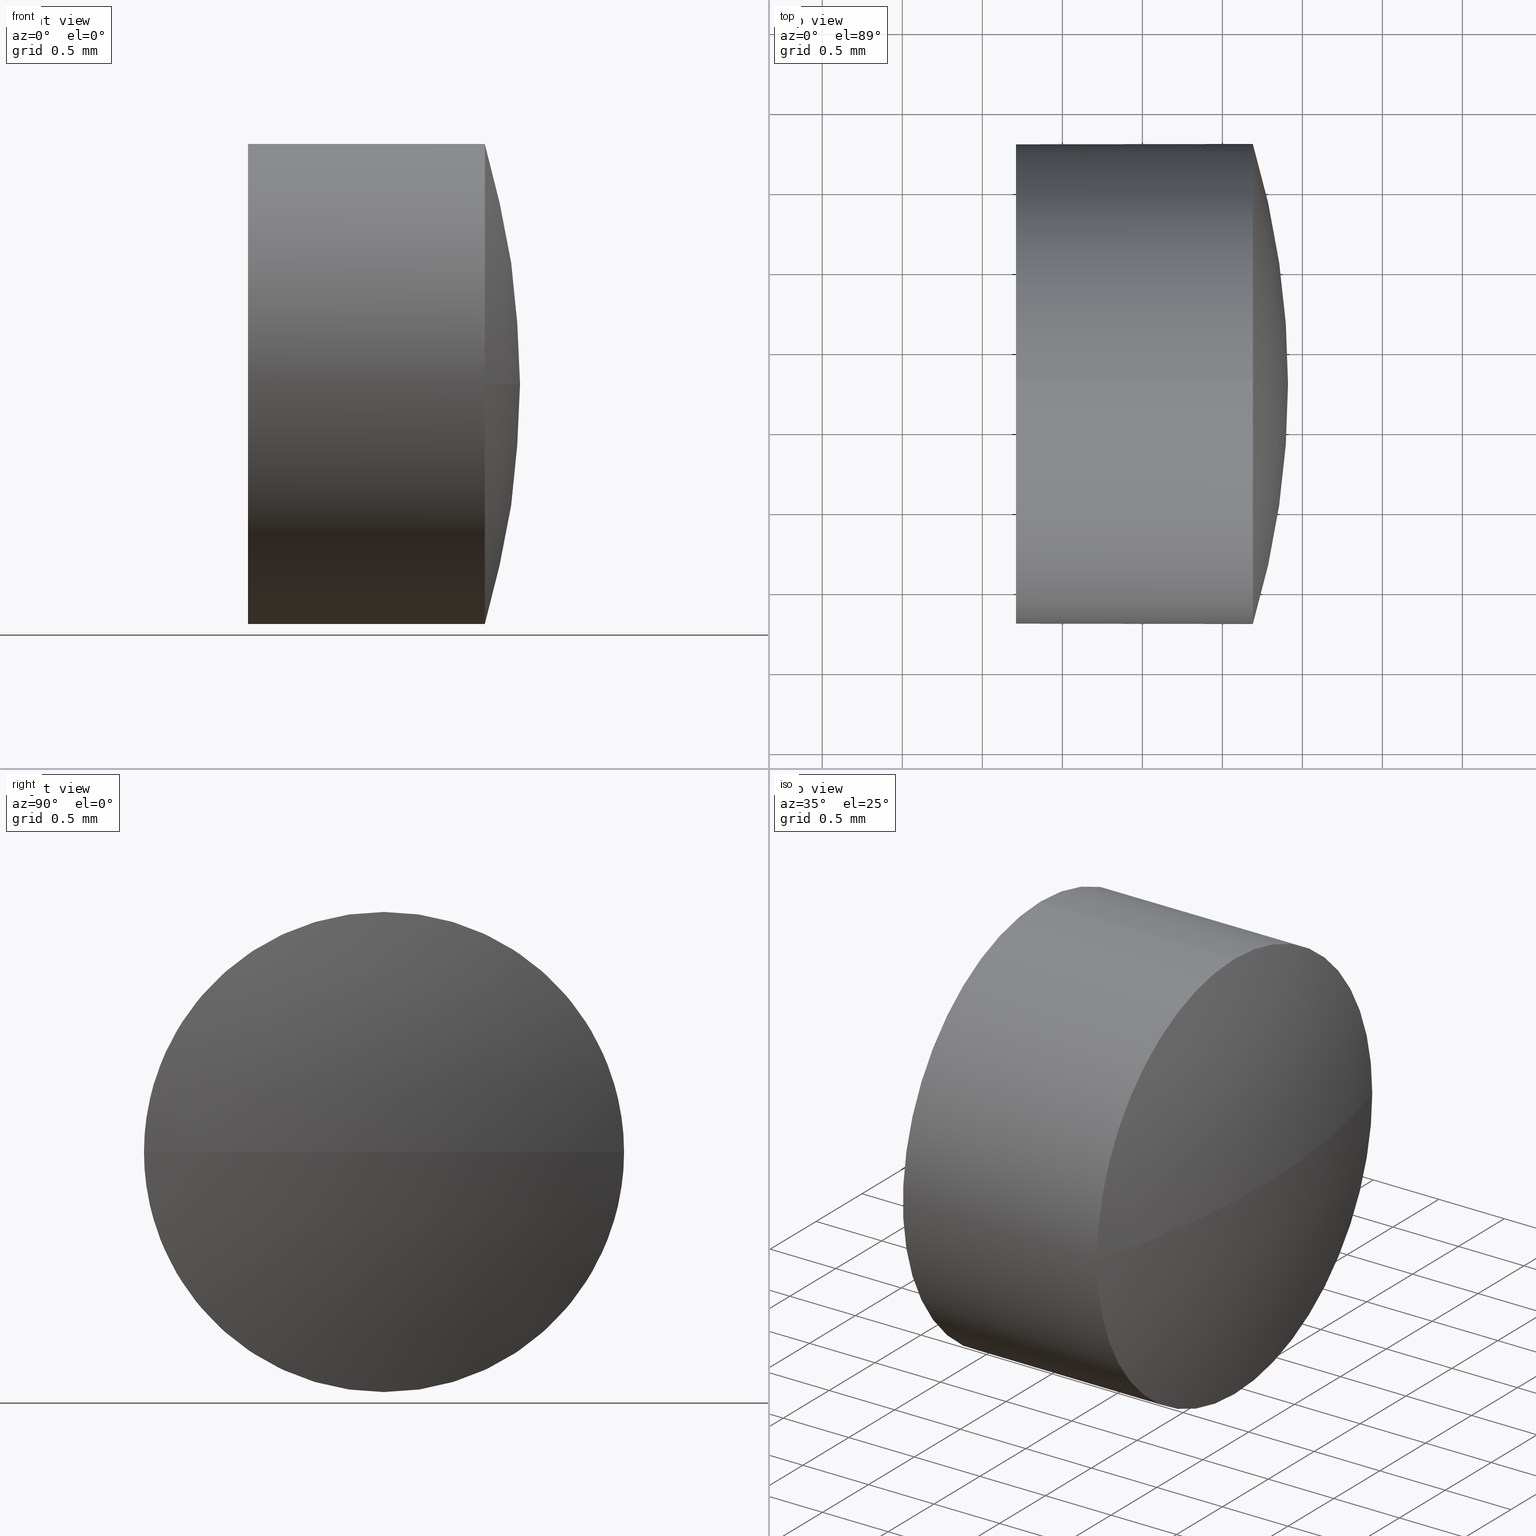
[diagram: canonical four-view strip — front | top / right | iso, engineering-drawing reading convention]
A machine part, canonical four-view strip (front | top / right | iso — engineering-drawing reading convention). The complete STEP part file that produces these views, byte-faithful:
ISO-10303-21;
HEADER;
FILE_DESCRIPTION (( 'STEP AP214' ),
    '1' );
FILE_NAME ('100173.STEP',
    '2019-05-21T01:02:58',
    ( '' ),
    ( '' ),
    'SwSTEP 2.0',
    'SolidWorks 2016',
    '' );
FILE_SCHEMA (( 'AUTOMOTIVE_DESIGN' ));
ENDSEC;

DATA;
#1 = ORIENTED_EDGE ( 'NONE', *, *, #13, .F. ) ;
#2 = FACE_OUTER_BOUND ( 'NONE', #112, .T. ) ;
#3 = ORIENTED_EDGE ( 'NONE', *, *, #98, .T. ) ;
#4 = DIRECTION ( 'NONE',  ( 0.0000000000000000000, 0.0000000000000000000, 1.000000000000000000 ) ) ;
#5 = CARTESIAN_POINT ( 'NONE',  ( 630.1866953188922500, 143.7893486755916400, 0.0000000000000000000 ) ) ;
#6 = AXIS2_PLACEMENT_3D ( 'NONE', #26, #36, #106 ) ;
#7 = ADVANCED_BREP_SHAPE_REPRESENTATION ( '100173', ( #94, #45 ), #167 ) ;
#8 = CARTESIAN_POINT ( 'NONE',  ( 630.1866953188922500, 143.7893486755916400, 0.0000000000000000000 ) ) ;
#9 = PLANE ( 'NONE',  #6 ) ;
#10 = ORIENTED_EDGE ( 'NONE', *, *, #136, .T. ) ;
#11 = CARTESIAN_POINT ( 'NONE',  ( 635.1903316825286100, 143.7893486755917300, -1.500000000000001300 ) ) ;
#12 = LINE ( 'NONE', #41, #122 ) ;
#13 = EDGE_CURVE ( 'NONE', #114, #170, #117, .T. ) ;
#14 = ORIENTED_EDGE ( 'NONE', *, *, #104, .F. ) ;
#15 = STYLED_ITEM ( 'NONE', ( #146 ), #7 ) ;
#16 = DIRECTION ( 'NONE',  ( 0.0000000000000000000, 0.0000000000000000000, 1.000000000000000000 ) ) ;
#17 = CIRCLE ( 'NONE', #111, 5.223636363636319200 ) ;
#18 =( NAMED_UNIT ( * ) SI_UNIT ( $, .STERADIAN. ) SOLID_ANGLE_UNIT ( ) );
#19 = EDGE_CURVE ( 'NONE', #68, #39, #12, .T. ) ;
#20 = DIRECTION ( 'NONE',  ( 0.0000000000000000000, 0.0000000000000000000, 1.000000000000000000 ) ) ;
#21 = MECHANICAL_DESIGN_GEOMETRIC_PRESENTATION_REPRESENTATION (  '', ( #15 ), #33 ) ;
#22 = ADVANCED_FACE ( 'NONE', ( #44 ), #85, .T. ) ;
#23 = DIRECTION ( 'NONE',  ( -1.000000000000000000, -0.0000000000000000000, -0.0000000000000000000 ) ) ;
#24 = AXIS2_PLACEMENT_3D ( 'NONE', #31, #115, #74 ) ;
#25 = DIRECTION ( 'NONE',  ( 0.0000000000000000000, 0.0000000000000000000, 1.000000000000000000 ) ) ;
#26 = CARTESIAN_POINT ( 'NONE',  ( 633.7103316825285900, 143.7893486755917300, 0.0000000000000000000 ) ) ;
#27 = ADVANCED_FACE ( 'NONE', ( #47 ), #161, .T. ) ;
#28 = EDGE_CURVE ( 'NONE', #40, #77, #17, .T. ) ;
#29 = CARTESIAN_POINT ( 'NONE',  ( 0.0000000000000000000, 0.0000000000000000000, 0.0000000000000000000 ) ) ;
#30 = DIRECTION ( 'NONE',  ( 1.000000000000000000, 0.0000000000000000000, 0.0000000000000000000 ) ) ;
#31 = CARTESIAN_POINT ( 'NONE',  ( 633.7103316825285900, 143.7893486755917300, 0.0000000000000000000 ) ) ;
#32 =( NAMED_UNIT ( * ) SI_UNIT ( $, .STERADIAN. ) SOLID_ANGLE_UNIT ( ) );
#33 =( GEOMETRIC_REPRESENTATION_CONTEXT ( 3 ) GLOBAL_UNCERTAINTY_ASSIGNED_CONTEXT ( ( #134 ) ) GLOBAL_UNIT_ASSIGNED_CONTEXT ( ( #56, #157, #159 ) ) REPRESENTATION_CONTEXT ( 'NONE', 'WORKASPACE' ) );
#34 = PRESENTATION_LAYER_ASSIGNMENT (  '', '', ( #38 ) ) ;
#35 = DIRECTION ( 'NONE',  ( -0.0000000000000000000, 0.0000000000000000000, -1.000000000000000000 ) ) ;
#36 = DIRECTION ( 'NONE',  ( 1.000000000000000000, 0.0000000000000000000, 0.0000000000000000000 ) ) ;
#37 = PRODUCT ( '100173', '100173', '', ( #172 ) ) ;
#38 = STYLED_ITEM ( 'NONE', ( #175 ), #94 ) ;
#39 = VERTEX_POINT ( 'NONE', #135 ) ;
#40 = VERTEX_POINT ( 'NONE', #48 ) ;
#41 = CARTESIAN_POINT ( 'NONE',  ( 633.3066025333835100, 143.7893486755917300, 1.500000000000001300 ) ) ;
#42 = APPLICATION_PROTOCOL_DEFINITION ( 'draft international standard', 'automotive_design', 1998, #89 ) ;
#43 = CARTESIAN_POINT ( 'NONE',  ( 635.1903316825286100, 145.2893486755917000, 0.0000000000000000000 ) ) ;
#44 = FACE_OUTER_BOUND ( 'NONE', #125, .T. ) ;
#45 = AXIS2_PLACEMENT_3D ( 'NONE', #29, #16, #30 ) ;
#46 = ORIENTED_EDGE ( 'NONE', *, *, #98, .F. ) ;
#47 = FACE_OUTER_BOUND ( 'NONE', #163, .T. ) ;
#48 = CARTESIAN_POINT ( 'NONE',  ( 635.4103316825286400, 143.7893486755916400, 0.0000000000000000000 ) ) ;
#49 = DIRECTION ( 'NONE',  ( -1.000000000000000000, -0.0000000000000000000, -0.0000000000000000000 ) ) ;
#50 = ORIENTED_EDGE ( 'NONE', *, *, #95, .T. ) ;
#51 = DIRECTION ( 'NONE',  ( -0.0000000000000000000, 0.0000000000000000000, -1.000000000000000000 ) ) ;
#52 = AXIS2_PLACEMENT_3D ( 'NONE', #137, #49, #169 ) ;
#53 = CIRCLE ( 'NONE', #109, 1.500000000000001300 ) ;
#54 = AXIS2_PLACEMENT_3D ( 'NONE', #79, #105, #148 ) ;
#55 = PRODUCT_DEFINITION ( 'δ֪', '', #75, #110 ) ;
#56 =( LENGTH_UNIT ( ) NAMED_UNIT ( * ) SI_UNIT ( .MILLI., .METRE. ) );
#57 = FILL_AREA_STYLE_COLOUR ( '', #149 ) ;
#58 = UNCERTAINTY_MEASURE_WITH_UNIT (LENGTH_MEASURE( 1.000000000000000100E-005 ), #160, 'distance_accuracy_value', 'NONE');
#59 = SURFACE_STYLE_USAGE ( .BOTH. , #144 ) ;
#60 = ADVANCED_FACE ( 'NONE', ( #2 ), #61, .T. ) ;
#61 = CYLINDRICAL_SURFACE ( 'NONE', #54, 1.500000000000001300 ) ;
#62 = DIRECTION ( 'NONE',  ( -0.0000000000000000000, 0.0000000000000000000, 1.000000000000000000 ) ) ;
#63 = AXIS2_PLACEMENT_3D ( 'NONE', #8, #51, #97 ) ;
#64 = CIRCLE ( 'NONE', #118, 5.223636363636346800 ) ;
#65 = SHAPE_DEFINITION_REPRESENTATION ( #138, #7 ) ;
#66 = CARTESIAN_POINT ( 'NONE',  ( 633.7103316825285900, 143.7893486755917300, -1.500000000000001300 ) ) ;
#67 = CIRCLE ( 'NONE', #24, 1.500000000000001300 ) ;
#68 = VERTEX_POINT ( 'NONE', #166 ) ;
#69 = EDGE_CURVE ( 'NONE', #39, #170, #67, .T. ) ;
#70 = CIRCLE ( 'NONE', #52, 1.500000000000001300 ) ;
#71 = APPLICATION_CONTEXT ( 'automotive_design' ) ;
#72 = APPLICATION_PROTOCOL_DEFINITION ( 'draft international standard', 'automotive_design', 1998, #71 ) ;
#73 = ORIENTED_EDGE ( 'NONE', *, *, #19, .F. ) ;
#74 = DIRECTION ( 'NONE',  ( 0.0000000000000000000, 0.0000000000000000000, 1.000000000000000000 ) ) ;
#75 = PRODUCT_DEFINITION_FORMATION_WITH_SPECIFIED_SOURCE ( '�κ�', '', #37, .NOT_KNOWN. ) ;
#76 = SURFACE_STYLE_FILL_AREA ( #130 ) ;
#77 = VERTEX_POINT ( 'NONE', #43 ) ;
#78 = DIRECTION ( 'NONE',  ( 0.0000000000000000000, 1.000000000000000000, 0.0000000000000000000 ) ) ;
#79 = CARTESIAN_POINT ( 'NONE',  ( 633.3066025333835100, 143.7893486755917300, 0.0000000000000000000 ) ) ;
#80 = AXIS2_PLACEMENT_3D ( 'NONE', #123, #35, #78 ) ;
#81 = DIRECTION ( 'NONE',  ( 0.0000000000000000000, 0.0000000000000000000, 1.000000000000000000 ) ) ;
#82 = DIRECTION ( 'NONE',  ( 0.0000000000000000000, 0.0000000000000000000, 1.000000000000000000 ) ) ;
#83 = ORIENTED_EDGE ( 'NONE', *, *, #136, .F. ) ;
#84 = DIRECTION ( 'NONE',  ( 0.0000000000000000000, 1.000000000000000000, 1.224646799147349800E-016 ) ) ;
#85 = CYLINDRICAL_SURFACE ( 'NONE', #174, 1.500000000000001300 ) ;
#86 = ORIENTED_EDGE ( 'NONE', *, *, #132, .T. ) ;
#87 = DIRECTION ( 'NONE',  ( -1.000000000000000000, -0.0000000000000000000, -0.0000000000000000000 ) ) ;
#88 = FILL_AREA_STYLE ('',( #57 ) ) ;
#89 = APPLICATION_CONTEXT ( 'automotive_design' ) ;
#90 = VECTOR ( 'NONE', #185, 1000.000000000000000 ) ;
#91 = PRODUCT_RELATED_PRODUCT_CATEGORY ( 'part', '', ( #37 ) ) ;
#92 = MECHANICAL_DESIGN_GEOMETRIC_PRESENTATION_REPRESENTATION (  '', ( #38 ), #116 ) ;
#93 = ORIENTED_EDGE ( 'NONE', *, *, #28, .F. ) ;
#94 = MANIFOLD_SOLID_BREP ( '��ת1', #153 ) ;
#95 = EDGE_CURVE ( 'NONE', #170, #39, #53, .T. ) ;
#96 = DIRECTION ( 'NONE',  ( 0.0000000000000000000, 1.224646799147353200E-016, -1.000000000000000000 ) ) ;
#97 = DIRECTION ( 'NONE',  ( 0.0000000000000000000, 1.000000000000000000, 0.0000000000000000000 ) ) ;
#98 = EDGE_CURVE ( 'NONE', #40, #147, #64, .T. ) ;
#99 = FACE_OUTER_BOUND ( 'NONE', #128, .T. ) ;
#100 = SURFACE_STYLE_USAGE ( .BOTH. , #183 ) ;
#101 = DIRECTION ( 'NONE',  ( -1.000000000000000000, -0.0000000000000000000, -0.0000000000000000000 ) ) ;
#102 = PRESENTATION_LAYER_ASSIGNMENT (  '', '', ( #15 ) ) ;
#103 = EDGE_CURVE ( 'NONE', #68, #77, #139, .T. ) ;
#104 = EDGE_CURVE ( 'NONE', #77, #114, #133, .T. ) ;
#105 = DIRECTION ( 'NONE',  ( -1.000000000000000000, -0.0000000000000000000, -0.0000000000000000000 ) ) ;
#106 = DIRECTION ( 'NONE',  ( 0.0000000000000000000, 0.0000000000000000000, -1.000000000000000000 ) ) ;
#107 = CARTESIAN_POINT ( 'NONE',  ( 635.1903316825286100, 143.7893486755917300, 0.0000000000000000000 ) ) ;
#108 = ORIENTED_EDGE ( 'NONE', *, *, #132, .F. ) ;
#109 = AXIS2_PLACEMENT_3D ( 'NONE', #177, #23, #4 ) ;
#110 = PRODUCT_DEFINITION_CONTEXT ( 'detailed design', #89, 'design' ) ;
#111 = AXIS2_PLACEMENT_3D ( 'NONE', #5, #62, #176 ) ;
#112 = EDGE_LOOP ( 'NONE', ( #1, #86, #10, #154, #158 ) ) ;
#113 = CARTESIAN_POINT ( 'NONE',  ( 633.3066025333835100, 143.7893486755917300, -1.500000000000001300 ) ) ;
#114 = VERTEX_POINT ( 'NONE', #11 ) ;
#115 = DIRECTION ( 'NONE',  ( -1.000000000000000000, -0.0000000000000000000, -0.0000000000000000000 ) ) ;
#116 =( GEOMETRIC_REPRESENTATION_CONTEXT ( 3 ) GLOBAL_UNCERTAINTY_ASSIGNED_CONTEXT ( ( #58 ) ) GLOBAL_UNIT_ASSIGNED_CONTEXT ( ( #160, #173, #32 ) ) REPRESENTATION_CONTEXT ( 'NONE', 'WORKASPACE' ) );
#117 = LINE ( 'NONE', #113, #90 ) ;
#118 = AXIS2_PLACEMENT_3D ( 'NONE', #181, #96, #84 ) ;
#119 = ADVANCED_FACE ( 'NONE', ( #171 ), #178, .T. ) ;
#120 = ORIENTED_EDGE ( 'NONE', *, *, #103, .T. ) ;
#121 = AXIS2_PLACEMENT_3D ( 'NONE', #107, #124, #25 ) ;
#122 = VECTOR ( 'NONE', #87, 1000.000000000000000 ) ;
#123 = CARTESIAN_POINT ( 'NONE',  ( 630.1866953188922500, 143.7893486755916400, 0.0000000000000000000 ) ) ;
#124 = DIRECTION ( 'NONE',  ( -1.000000000000000000, -0.0000000000000000000, -0.0000000000000000000 ) ) ;
#125 = EDGE_LOOP ( 'NONE', ( #168, #127, #131, #73, #120 ) ) ;
#126 = CARTESIAN_POINT ( 'NONE',  ( 635.1903316825286100, 142.2893486755916700, -1.836970198720990200E-016 ) ) ;
#127 = ORIENTED_EDGE ( 'NONE', *, *, #13, .T. ) ;
#128 = EDGE_LOOP ( 'NONE', ( #143, #50 ) ) ;
#129 = CARTESIAN_POINT ( 'NONE',  ( 633.3066025333835100, 143.7893486755917300, 0.0000000000000000000 ) ) ;
#130 = FILL_AREA_STYLE ('',( #162 ) ) ;
#131 = ORIENTED_EDGE ( 'NONE', *, *, #69, .F. ) ;
#132 = EDGE_CURVE ( 'NONE', #114, #147, #141, .T. ) ;
#133 = CIRCLE ( 'NONE', #150, 1.500000000000001300 ) ;
#134 = UNCERTAINTY_MEASURE_WITH_UNIT (LENGTH_MEASURE( 1.000000000000000100E-005 ), #56, 'distance_accuracy_value', 'NONE');
#135 = CARTESIAN_POINT ( 'NONE',  ( 633.7103316825285900, 143.7893486755917300, 1.500000000000001300 ) ) ;
#136 = EDGE_CURVE ( 'NONE', #147, #68, #70, .T. ) ;
#137 = CARTESIAN_POINT ( 'NONE',  ( 635.1903316825286100, 143.7893486755917300, 0.0000000000000000000 ) ) ;
#138 = PRODUCT_DEFINITION_SHAPE ( 'NONE', 'NONE',  #55 ) ;
#139 = CIRCLE ( 'NONE', #145, 1.500000000000001300 ) ;
#140 =( LENGTH_UNIT ( ) NAMED_UNIT ( * ) SI_UNIT ( .MILLI., .METRE. ) );
#141 = CIRCLE ( 'NONE', #121, 1.500000000000001300 ) ;
#142 = COLOUR_RGB ( '',1.000000000000000000, 1.000000000000000000, 1.000000000000000000 ) ;
#143 = ORIENTED_EDGE ( 'NONE', *, *, #69, .T. ) ;
#144 = SURFACE_SIDE_STYLE ('',( #76 ) ) ;
#145 = AXIS2_PLACEMENT_3D ( 'NONE', #155, #151, #81 ) ;
#146 = PRESENTATION_STYLE_ASSIGNMENT (( #100 ) ) ;
#147 = VERTEX_POINT ( 'NONE', #126 ) ;
#148 = DIRECTION ( 'NONE',  ( 0.0000000000000000000, 0.0000000000000000000, 1.000000000000000000 ) ) ;
#149 = COLOUR_RGB ( '',1.000000000000000000, 1.000000000000000000, 1.000000000000000000 ) ;
#150 = AXIS2_PLACEMENT_3D ( 'NONE', #180, #179, #82 ) ;
#151 = DIRECTION ( 'NONE',  ( -1.000000000000000000, -0.0000000000000000000, -0.0000000000000000000 ) ) ;
#152 =( NAMED_UNIT ( * ) PLANE_ANGLE_UNIT ( ) SI_UNIT ( $, .RADIAN. ) );
#153 = CLOSED_SHELL ( 'NONE', ( #22, #119, #27, #60, #164 ) ) ;
#154 = ORIENTED_EDGE ( 'NONE', *, *, #19, .T. ) ;
#155 = CARTESIAN_POINT ( 'NONE',  ( 635.1903316825286100, 143.7893486755917300, 0.0000000000000000000 ) ) ;
#156 = ORIENTED_EDGE ( 'NONE', *, *, #28, .T. ) ;
#157 =( NAMED_UNIT ( * ) PLANE_ANGLE_UNIT ( ) SI_UNIT ( $, .RADIAN. ) );
#158 = ORIENTED_EDGE ( 'NONE', *, *, #95, .F. ) ;
#159 =( NAMED_UNIT ( * ) SI_UNIT ( $, .STERADIAN. ) SOLID_ANGLE_UNIT ( ) );
#160 =( LENGTH_UNIT ( ) NAMED_UNIT ( * ) SI_UNIT ( .MILLI., .METRE. ) );
#161 = SPHERICAL_SURFACE ( 'NONE', #80, 5.223636363636333400 ) ;
#162 = FILL_AREA_STYLE_COLOUR ( '', #142 ) ;
#163 = EDGE_LOOP ( 'NONE', ( #46, #156, #184, #83 ) ) ;
#164 = ADVANCED_FACE ( 'NONE', ( #99 ), #9, .F. ) ;
#165 = EDGE_LOOP ( 'NONE', ( #93, #3, #108, #14 ) ) ;
#166 = CARTESIAN_POINT ( 'NONE',  ( 635.1903316825286100, 143.7893486755917300, 1.500000000000001300 ) ) ;
#167 =( GEOMETRIC_REPRESENTATION_CONTEXT ( 3 ) GLOBAL_UNCERTAINTY_ASSIGNED_CONTEXT ( ( #186 ) ) GLOBAL_UNIT_ASSIGNED_CONTEXT ( ( #140, #152, #18 ) ) REPRESENTATION_CONTEXT ( 'NONE', 'WORKASPACE' ) );
#168 = ORIENTED_EDGE ( 'NONE', *, *, #104, .T. ) ;
#169 = DIRECTION ( 'NONE',  ( 0.0000000000000000000, 0.0000000000000000000, 1.000000000000000000 ) ) ;
#170 = VERTEX_POINT ( 'NONE', #66 ) ;
#171 = FACE_OUTER_BOUND ( 'NONE', #165, .T. ) ;
#172 = PRODUCT_CONTEXT ( 'NONE', #71, 'mechanical' ) ;
#173 =( NAMED_UNIT ( * ) PLANE_ANGLE_UNIT ( ) SI_UNIT ( $, .RADIAN. ) );
#174 = AXIS2_PLACEMENT_3D ( 'NONE', #129, #101, #20 ) ;
#175 = PRESENTATION_STYLE_ASSIGNMENT (( #59 ) ) ;
#176 = DIRECTION ( 'NONE',  ( 1.000000000000000000, 0.0000000000000000000, 0.0000000000000000000 ) ) ;
#177 = CARTESIAN_POINT ( 'NONE',  ( 633.7103316825285900, 143.7893486755917300, 0.0000000000000000000 ) ) ;
#178 = SPHERICAL_SURFACE ( 'NONE', #63, 5.223636363636333400 ) ;
#179 = DIRECTION ( 'NONE',  ( -1.000000000000000000, -0.0000000000000000000, -0.0000000000000000000 ) ) ;
#180 = CARTESIAN_POINT ( 'NONE',  ( 635.1903316825286100, 143.7893486755917300, 0.0000000000000000000 ) ) ;
#181 = CARTESIAN_POINT ( 'NONE',  ( 630.1866953188922500, 143.7893486755916400, 0.0000000000000000000 ) ) ;
#182 = SURFACE_STYLE_FILL_AREA ( #88 ) ;
#183 = SURFACE_SIDE_STYLE ('',( #182 ) ) ;
#184 = ORIENTED_EDGE ( 'NONE', *, *, #103, .F. ) ;
#185 = DIRECTION ( 'NONE',  ( -1.000000000000000000, -0.0000000000000000000, -0.0000000000000000000 ) ) ;
#186 = UNCERTAINTY_MEASURE_WITH_UNIT (LENGTH_MEASURE( 1.000000000000000100E-005 ), #140, 'distance_accuracy_value', 'NONE');
ENDSEC;
END-ISO-10303-21;
